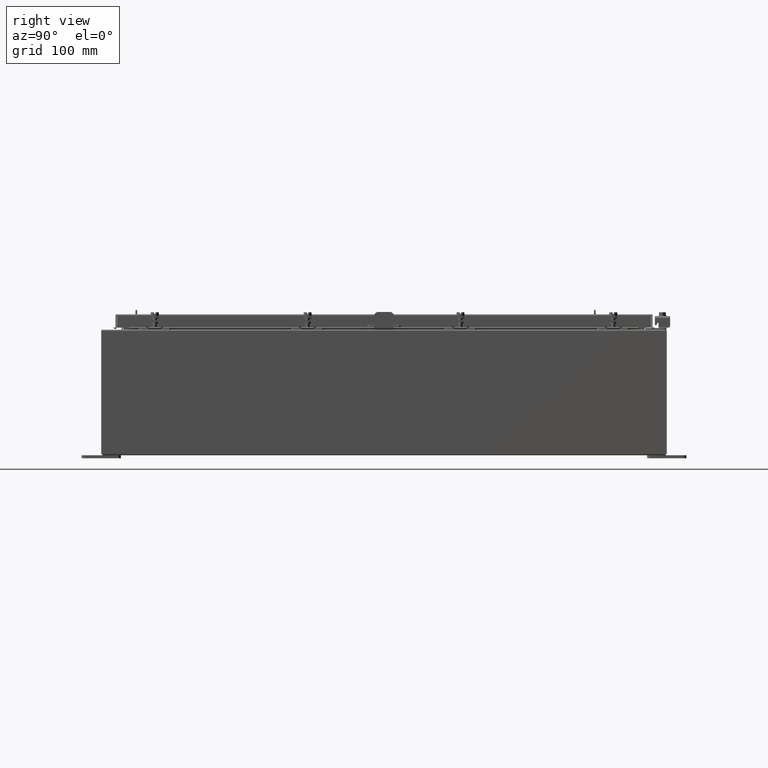
[diagram: clean part render]
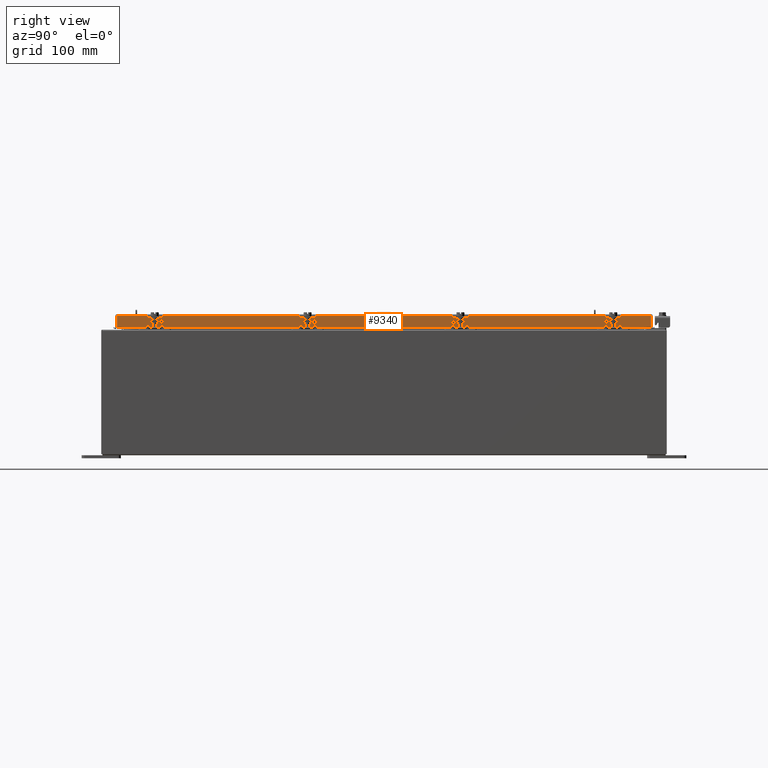
[diagram: same view with one face highlighted and labeled with its STEP entity id]
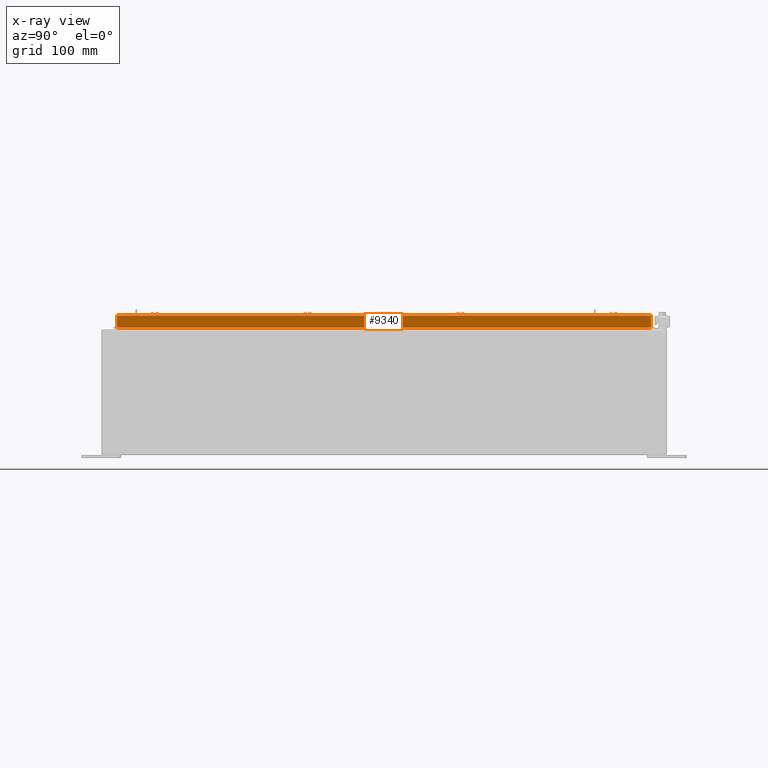
[diagram: x-ray of the same camera — body ghosted, the highlighted face saturated]
A machine part, right view. The second image highlights one B-rep face of the part: STEP entity #9340.
The next image is the same camera in x-ray: the body ghosted, the highlighted face saturated — about 0% of this face is hidden behind the body in this view.
In plain terms, the highlighted planar face has unit normal (1, 0, 0).
Its self-contained STEP definition (entity closure, byte-faithful):
#801 = LINE ( 'NONE', #12286, #1376 ) ;
#1015 = CARTESIAN_POINT ( 'NONE',  ( 11.07799999999999800, 0.0000000000000000000, 3.148837674004378400E-014 ) ) ;
#1376 = VECTOR ( 'NONE', #1600, 39.37007874015748100 ) ;
#1600 = DIRECTION ( 'NONE',  ( 0.0000000000000000000, -1.000000000000000000, 0.0000000000000000000 ) ) ;
#1796 = CARTESIAN_POINT ( 'NONE',  ( 11.07799999999999200, -16.25515786437626500, -0.8500000000000020900 ) ) ;
#2104 = CARTESIAN_POINT ( 'NONE',  ( 11.07799999999999800, 17.00515786437626500, -0.08770000000000115200 ) ) ;
#2410 = EDGE_CURVE ( 'NONE', #7042, #10391, #22397, .T. ) ;
#2516 = EDGE_CURVE ( 'NONE', #18126, #10391, #20703, .T. ) ;
#2809 = DIRECTION ( 'NONE',  ( 2.818880942772360100E-015, 0.0000000000000000000, -1.000000000000000000 ) ) ;
#3226 = LINE ( 'NONE', #4068, #21790 ) ;
#4026 = ORIENTED_EDGE ( 'NONE', *, *, #5148, .F. ) ;
#4068 = CARTESIAN_POINT ( 'NONE',  ( 11.07799999999999200, 16.25515786437627200, -0.8500000000000020900 ) ) ;
#4118 = EDGE_CURVE ( 'NONE', #7942, #7042, #14762, .T. ) ;
#5148 = EDGE_CURVE ( 'NONE', #13552, #13576, #3226, .T. ) ;
#5210 = ORIENTED_EDGE ( 'NONE', *, *, #2516, .F. ) ;
#5462 = EDGE_CURVE ( 'NONE', #13576, #18126, #22632, .T. ) ;
#6309 = VECTOR ( 'NONE', #13850, 39.37007874015748100 ) ;
#7017 = DIRECTION ( 'NONE',  ( 0.0000000000000000000, -1.000000000000000000, 0.0000000000000000000 ) ) ;
#7038 = CARTESIAN_POINT ( 'NONE',  ( 11.07799999999999200, 16.25515786437627200, -0.8500000000000020900 ) ) ;
#7042 = VERTEX_POINT ( 'NONE', #2104 ) ;
#7942 = VERTEX_POINT ( 'NONE', #10673 ) ;
#7996 = VECTOR ( 'NONE', #15416, 39.37007874015748100 ) ;
#8215 = VECTOR ( 'NONE', #8716, 39.37007874015748100 ) ;
#8541 = CARTESIAN_POINT ( 'NONE',  ( 11.07799999999999900, -17.00515786437626500, -0.8499999999999996400 ) ) ;
#8716 = DIRECTION ( 'NONE',  ( 0.0000000000000000000, -1.000000000000000000, 0.0000000000000000000 ) ) ;
#9340 = ADVANCED_FACE ( 'NONE', ( #18842 ), #22530, .T. ) ;
#10391 = VERTEX_POINT ( 'NONE', #21711 ) ;
#10493 = VECTOR ( 'NONE', #21546, 39.37007874015748100 ) ;
#10673 = CARTESIAN_POINT ( 'NONE',  ( 11.07799999999999900, 17.00515786437627600, -0.8499999999999996400 ) ) ;
#12286 = CARTESIAN_POINT ( 'NONE',  ( 11.07799999999999900, -17.09400000000000100, -0.8499999999999996400 ) ) ;
#13189 = ORIENTED_EDGE ( 'NONE', *, *, #4118, .T. ) ;
#13537 = DIRECTION ( 'NONE',  ( 1.000000000000000000, 0.0000000000000000000, 2.818880942772360100E-015 ) ) ;
#13552 = VERTEX_POINT ( 'NONE', #7038 ) ;
#13576 = VERTEX_POINT ( 'NONE', #1796 ) ;
#13838 = CARTESIAN_POINT ( 'NONE',  ( 11.07799999999999900, -17.09400000000000100, -0.8499999999999996400 ) ) ;
#13850 = DIRECTION ( 'NONE',  ( -2.818880942772360500E-015, -6.982962677686269100E-015, 1.000000000000000000 ) ) ;
#14088 = CARTESIAN_POINT ( 'NONE',  ( 11.07799999999999800, 5.606249421889436000E-018, -0.08770000000000115200 ) ) ;
#14209 = ORIENTED_EDGE ( 'NONE', *, *, #2410, .T. ) ;
#14762 = LINE ( 'NONE', #14830, #6309 ) ;
#14830 = CARTESIAN_POINT ( 'NONE',  ( 11.07799999999999800, 17.00515786437626900, 1.502347594351463900E-013 ) ) ;
#15416 = DIRECTION ( 'NONE',  ( 1.801978295984813200E-031, -1.000000000000000000, -6.392530697705073700E-017 ) ) ;
#17867 = AXIS2_PLACEMENT_3D ( 'NONE', #1015, #13537, #2809 ) ;
#18126 = VERTEX_POINT ( 'NONE', #8541 ) ;
#18698 = EDGE_CURVE ( 'NONE', #7942, #13552, #801, .T. ) ;
#18842 = FACE_OUTER_BOUND ( 'NONE', #22642, .T. ) ;
#20359 = CARTESIAN_POINT ( 'NONE',  ( 11.07799999999999800, -17.00515786437626900, -0.07469999999999978000 ) ) ;
#20652 = ORIENTED_EDGE ( 'NONE', *, *, #5462, .F. ) ;
#20703 = LINE ( 'NONE', #20359, #10493 ) ;
#21546 = DIRECTION ( 'NONE',  ( -2.818880942772360500E-015, -6.982962677686269100E-015, 1.000000000000000000 ) ) ;
#21711 = CARTESIAN_POINT ( 'NONE',  ( 11.07799999999999800, -17.00515786437626900, -0.08770000000000224800 ) ) ;
#21790 = VECTOR ( 'NONE', #7017, 39.37007874015748100 ) ;
#22397 = LINE ( 'NONE', #14088, #7996 ) ;
#22530 = PLANE ( 'NONE',  #17867 ) ;
#22632 = LINE ( 'NONE', #13838, #8215 ) ;
#22642 = EDGE_LOOP ( 'NONE', ( #5210, #20652, #4026, #23090, #13189, #14209 ) ) ;
#23090 = ORIENTED_EDGE ( 'NONE', *, *, #18698, .F. ) ;